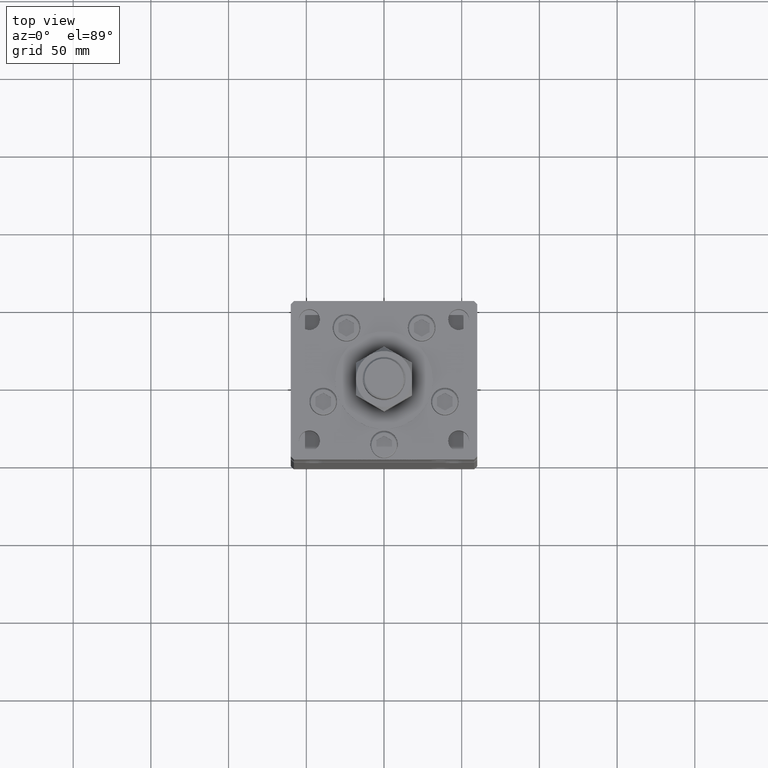
[diagram: clean part render]
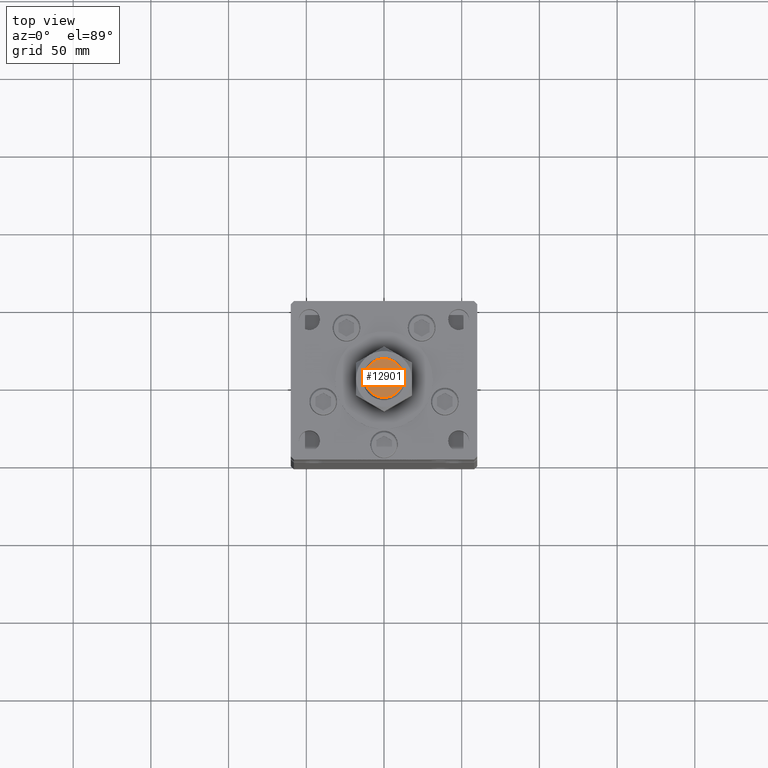
[diagram: same view with one face highlighted and labeled with its STEP entity id]
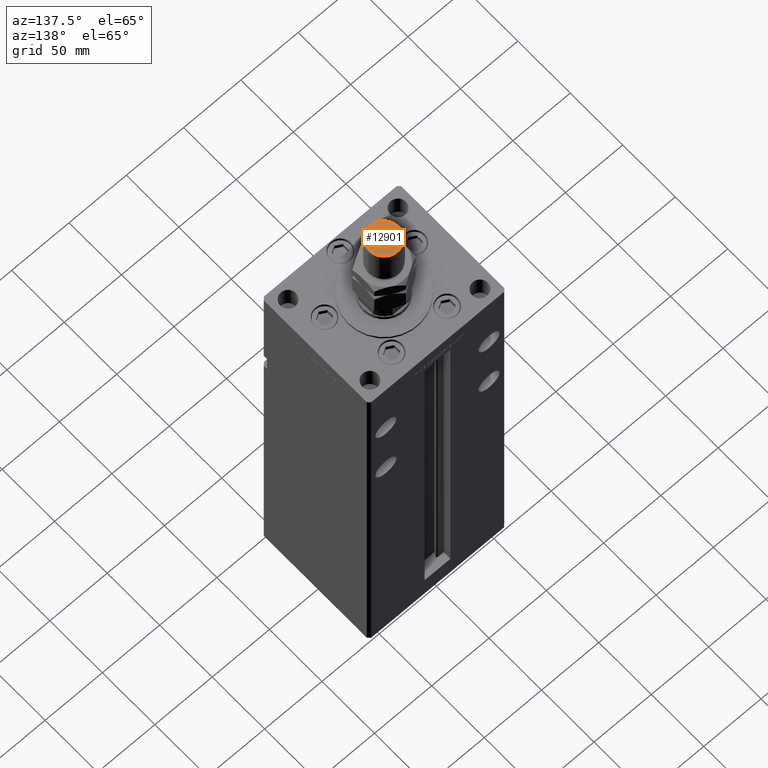
[diagram: same view with one face highlighted and labeled with its STEP entity id]
A machine part, top view. The second image highlights one B-rep face of the part: STEP entity #12901.
A second angle (auxiliary view) of the same face is appended — the face is thin or edge-on in the first view.
In plain terms, the highlighted planar face has unit normal (0, 0, 1).
Its self-contained STEP definition (entity closure, byte-faithful):
#254 = DIRECTION ( 'NONE',  ( 0.000000000000000000, 0.000000000000000000, 1.000000000000000000 ) ) ;
#2438 = VERTEX_POINT ( 'NONE', #24353 ) ;
#2914 = CARTESIAN_POINT ( 'NONE',  ( 0.000000000000000000, 0.000000000000000000, 70.00000000000000000 ) ) ;
#7000 = CARTESIAN_POINT ( 'NONE',  ( 0.000000000000000000, 0.000000000000000000, 70.00000000000000000 ) ) ;
#7538 = DIRECTION ( 'NONE',  ( 1.000000000000000000, 0.000000000000000000, 0.000000000000000000 ) ) ;
#8926 = ORIENTED_EDGE ( 'NONE', *, *, #43813, .T. ) ;
#12901 = ADVANCED_FACE ( 'NONE', ( #23667 ), #53745, .T. ) ;
#13505 = CIRCLE ( 'NONE', #25863, 12.49999999999999467 ) ;
#17680 = CARTESIAN_POINT ( 'NONE',  ( 0.000000000000000000, 0.000000000000000000, 70.00000000000000000 ) ) ;
#22194 = ORIENTED_EDGE ( 'NONE', *, *, #48312, .T. ) ;
#23667 = FACE_OUTER_BOUND ( 'NONE', #26828, .T. ) ;
#23864 = DIRECTION ( 'NONE',  ( 1.000000000000000000, 0.000000000000000000, 0.000000000000000000 ) ) ;
#24353 = CARTESIAN_POINT ( 'NONE',  ( 12.49999999999999467, 1.592040838891558898E-15, 70.00000000000000000 ) ) ;
#24744 = DIRECTION ( 'NONE',  ( 0.000000000000000000, 0.000000000000000000, 1.000000000000000000 ) ) ;
#25863 = AXIS2_PLACEMENT_3D ( 'NONE', #7000, #41247, #23864 ) ;
#26828 = EDGE_LOOP ( 'NONE', ( #22194, #8926 ) ) ;
#32484 = DIRECTION ( 'NONE',  ( 1.000000000000000000, 0.000000000000000000, -0.000000000000000000 ) ) ;
#35050 = VERTEX_POINT ( 'NONE', #43860 ) ;
#36600 = AXIS2_PLACEMENT_3D ( 'NONE', #17680, #254, #7538 ) ;
#41247 = DIRECTION ( 'NONE',  ( 0.000000000000000000, 0.000000000000000000, 1.000000000000000000 ) ) ;
#43663 = CIRCLE ( 'NONE', #36600, 12.49999999999999467 ) ;
#43813 = EDGE_CURVE ( 'NONE', #2438, #35050, #13505, .T. ) ;
#43860 = CARTESIAN_POINT ( 'NONE',  ( -12.49999999999999467, 0.000000000000000000, 70.00000000000000000 ) ) ;
#48018 = AXIS2_PLACEMENT_3D ( 'NONE', #2914, #24744, #32484 ) ;
#48312 = EDGE_CURVE ( 'NONE', #35050, #2438, #43663, .T. ) ;
#53745 = PLANE ( 'NONE',  #48018 ) ;